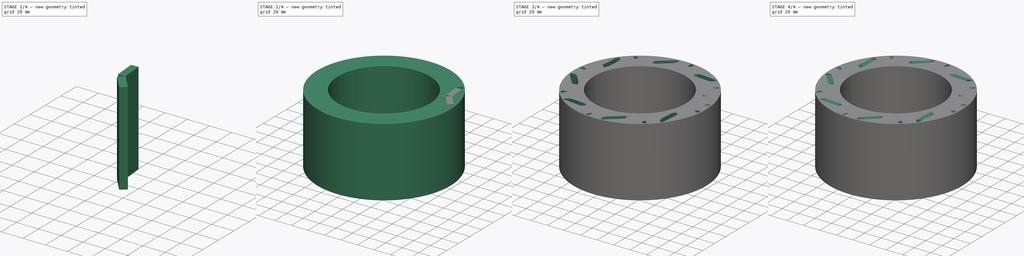
[diagram: build sequence overview — one tinted view per stage of 4, left to right]
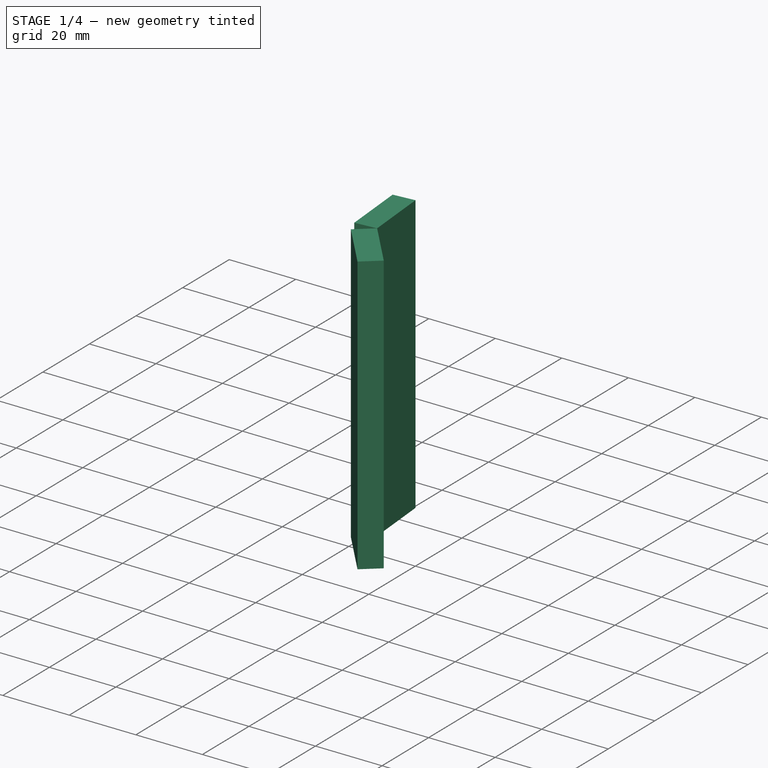
[diagram: stage 1 of 4 — iso view after this stage's code; geometry added in this stage tinted green]
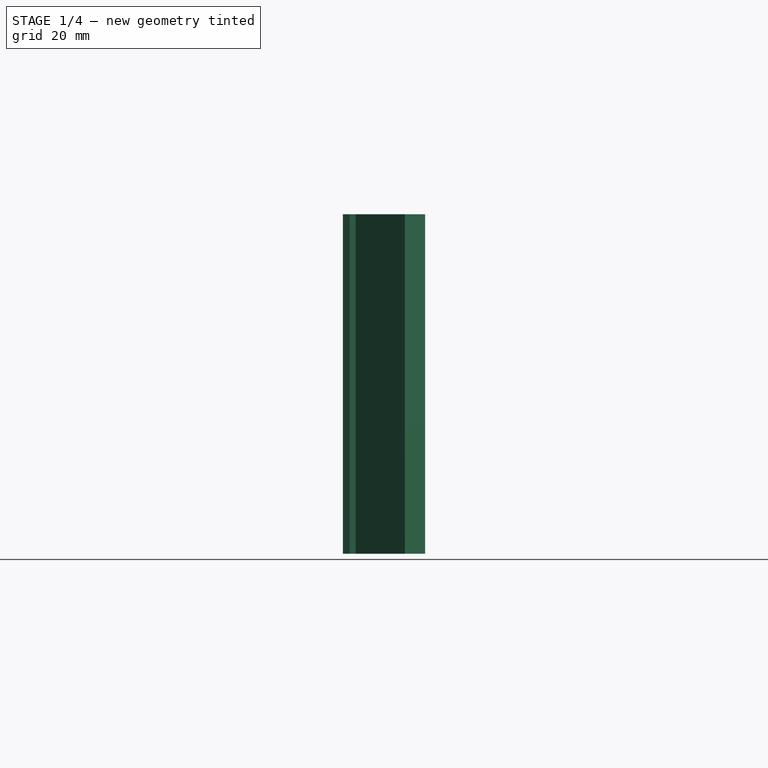
[diagram: stage 1 of 4 — front view after this stage's code; geometry added in this stage tinted green]
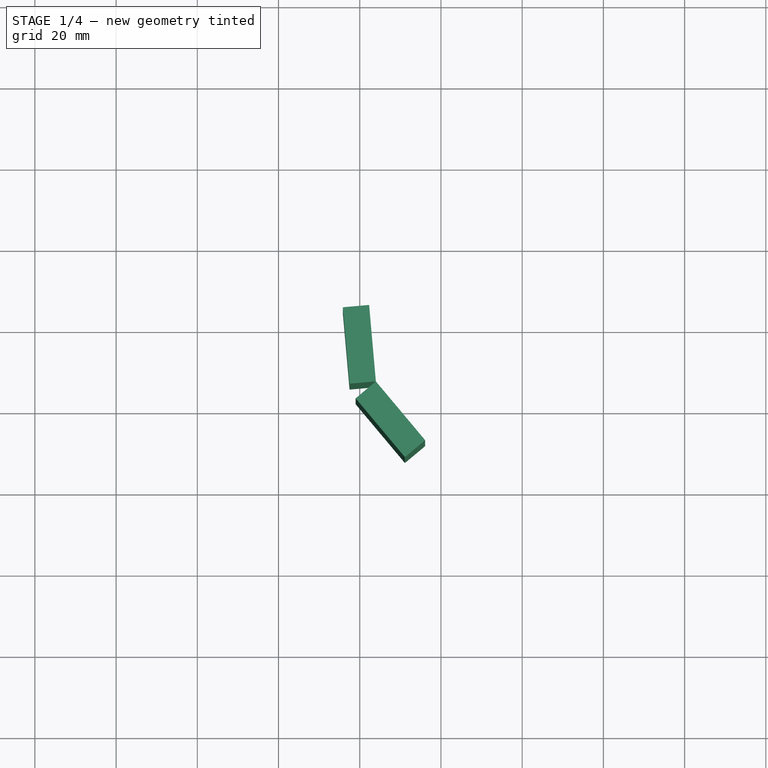
[diagram: stage 1 of 4 — top view after this stage's code; geometry added in this stage tinted green]
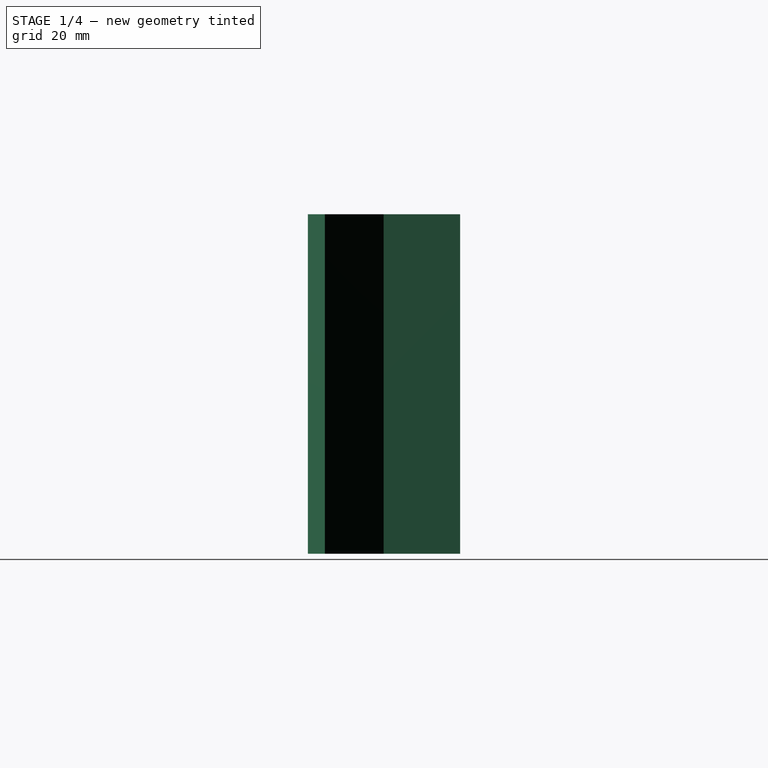
[diagram: stage 1 of 4 — right view after this stage's code; geometry added in this stage tinted green]
FCSTD DOCUMENT  (FreeCAD 0.18R4 (GitTag))
Label: ROTOR
License: All rights reserved
LicenseURL: http://en.wikipedia.org/wiki/All_rights_reserved
objects: Sketcher::SketchObject×8, PartDesign::Pad×5, PartDesign::PolarPattern×3, PartDesign::Body×3, PartDesign::Line×1, PartDesign::Pocket×1
note: 27 computed .brp shape members not serialized (recipe doc carries the construction recipe); baked Part::Feature solids carry a one-line shape summary decoded from their .brp

FEATURE [PartDesign::Pad] Pad001
  Length = 83.6
  Length2 = 100
  Profile = -> Sketch006
  Reversed = true
  Type = 0
FEATURE [PartDesign::Body] Body  label="Rotor"
  Group = -> [Sketch,DatumLine,Sketch001,Sketch002,Pad,Pocket,PolarPattern,Sketch003,Sketch004,Sketch005,Pad002,PolarPattern001,Pad004,PolarPattern002]
  Origin = -> Origin
  Tip = -> PolarPattern002
FEATURE [PartDesign::Pad] Pad003
  Length = 83.6
  Length2 = 100
  Profile = -> Sketch007
  Reversed = true
  Type = 0
FEATURE [PartDesign::Body] Body002  label="Magnet2"
  Group = -> [Sketch007,Pad003]
  Origin = -> Origin002
  Tip = -> Pad003
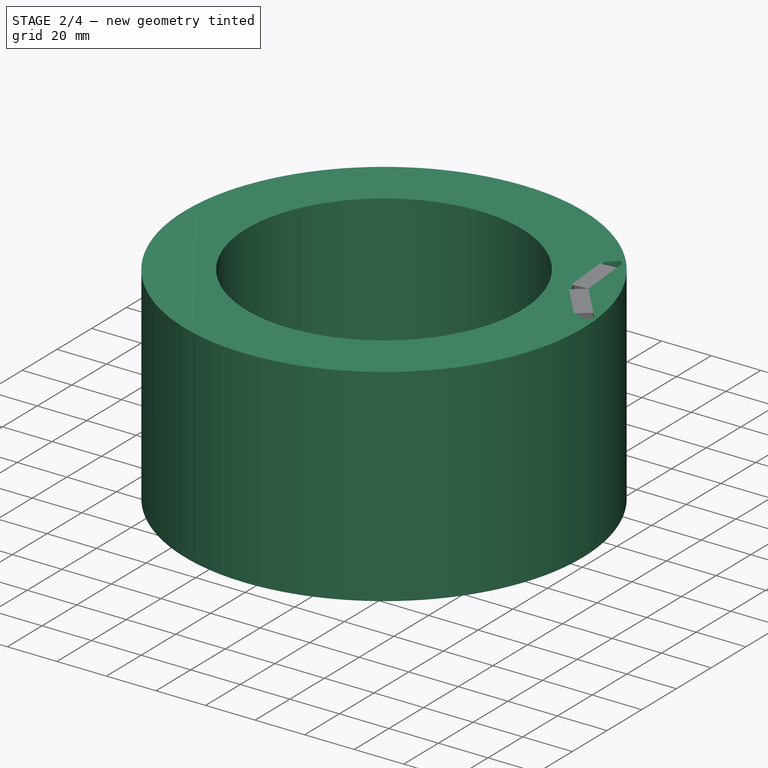
[diagram: stage 2 of 4 — iso view after this stage's code; geometry added in this stage tinted green]
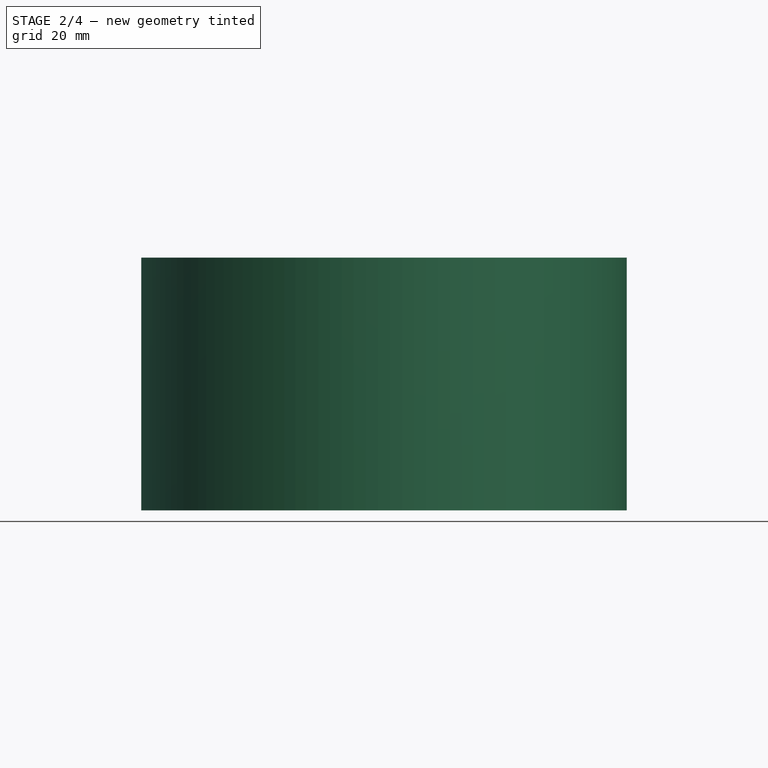
[diagram: stage 2 of 4 — front view after this stage's code; geometry added in this stage tinted green]
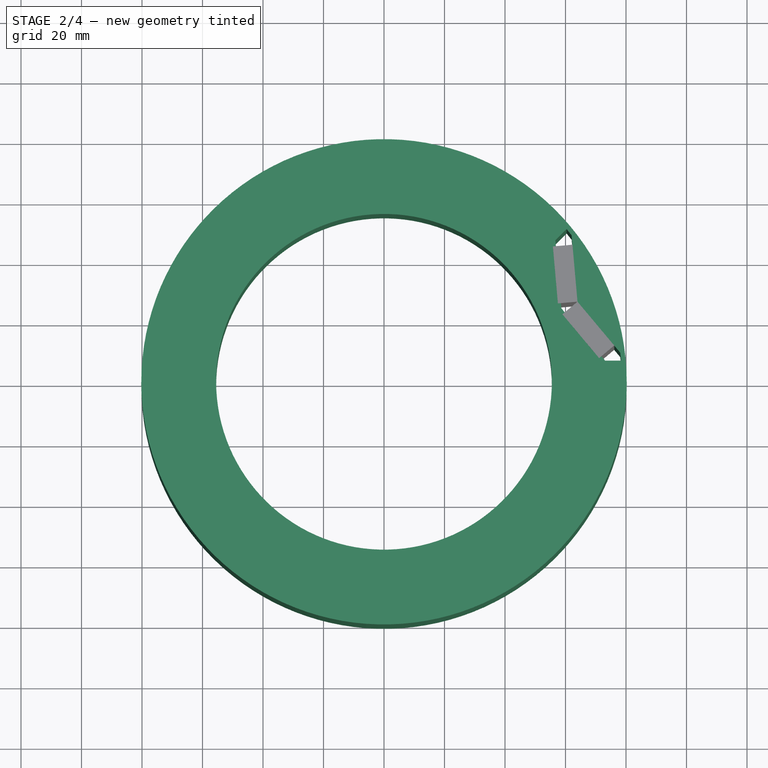
[diagram: stage 2 of 4 — top view after this stage's code; geometry added in this stage tinted green]
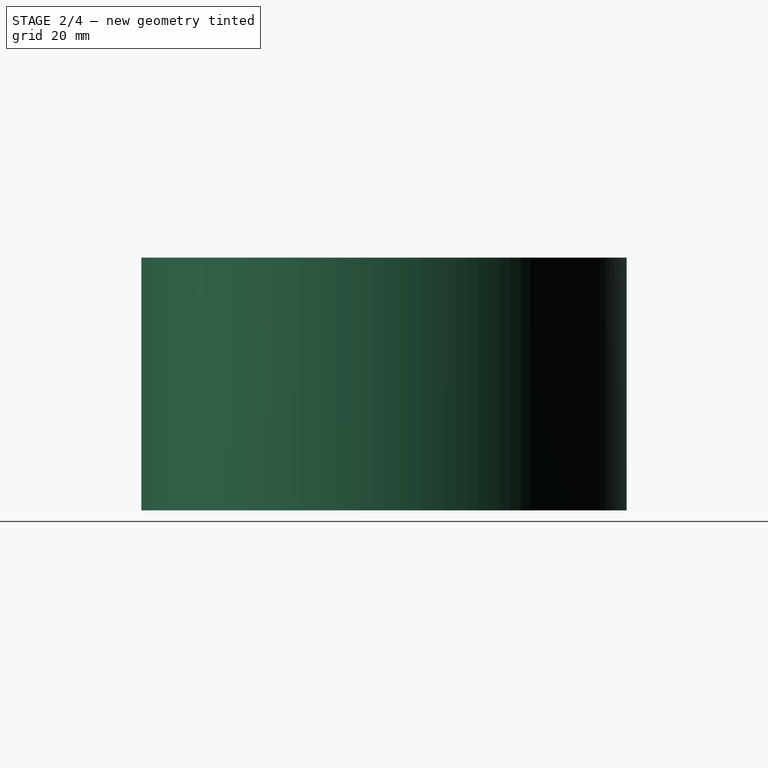
[diagram: stage 2 of 4 — right view after this stage's code; geometry added in this stage tinted green]
FEATURE [Sketcher::SketchObject] Sketch
  MapMode = 5
  Support = -> [XY_Plane]
  sketch-geometry (24):
    g0: LineSegment [constr] StartX=0 StartY=0 StartZ=0 EndX=83.1492 EndY=34.4415 EndZ=0
    g1: GeomPoint X=58.6386 Y=24.2889 Z=0
    g2: GeomPoint X=63.9694 Y=26.497 Z=0
    g3: LineSegment StartX=58.6386 StartY=24.2889 StartZ=0 EndX=58.4867 EndY=26.0122 EndZ=0
    g4: LineSegment StartX=58.4867 StartY=26.0122 StartZ=0 EndX=57.4905 EndY=25.9244 EndZ=0
    g5: LineSegment StartX=57.4905 StartY=25.9244 StartZ=0 EndX=55.8301 EndY=44.7513 EndZ=0
    g6: LineSegment StartX=55.8301 StartY=44.7513 StartZ=0 EndX=56.8263 EndY=44.8392 EndZ=0
    g7: LineSegment StartX=56.8263 StartY=44.8392 StartZ=0 EndX=56.6567 EndY=46.7617 EndZ=0
    g8: LineSegment StartX=56.6567 StartY=46.7617 StartZ=0 EndX=60.3761 EndY=50.4811 EndZ=0
    g9: LineSegment StartX=62.305 StartY=45.3223 StartZ=0 EndX=63.9694 EndY=26.497 EndZ=0
    g10: GeomPoint X=62.0318 Y=48.4203 Z=0
    g11: LineSegment StartX=60.3761 StartY=50.4811 StartZ=0 EndX=62.0318 EndY=48.4203 EndZ=0
    g12: LineSegment StartX=62.0318 StartY=48.4203 StartZ=0 EndX=62.305 EndY=45.3223 EndZ=0
    g13: LineSegment [constr] StartX=56.8263 StartY=44.8392 StartZ=0 EndX=62.305 EndY=45.3223 EndZ=0
    g14: LineSegment StartX=58.6386 StartY=24.2889 StartZ=0 EndX=59.7497 EndY=22.9629 EndZ=0
    g15: LineSegment StartX=59.7497 StartY=22.9629 StartZ=0 EndX=58.9832 EndY=22.3206 EndZ=0
    g16: LineSegment StartX=58.9832 StartY=22.3206 StartZ=0 EndX=71.1218 EndY=7.83391 EndZ=0
    g17: LineSegment StartX=71.1218 StartY=7.83391 StartZ=0 EndX=71.8883 EndY=8.47617 EndZ=0
    g18: LineSegment StartX=71.8883 StartY=8.47617 StartZ=0 EndX=73.1279 EndY=6.99684 EndZ=0
    g19: LineSegment StartX=73.1279 StartY=6.99684 StartZ=0 EndX=78.3879 EndY=6.99684 EndZ=0
    g20: LineSegment StartX=78.3879 StartY=6.99684 StartZ=0 EndX=78.1014 EndY=9.62476 EndZ=0
    g21: LineSegment StartX=78.1014 StartY=9.62476 StartZ=0 EndX=76.104 EndY=12.0086 EndZ=0
    g22: LineSegment StartX=76.104 StartY=12.0086 StartZ=0 EndX=63.9694 EndY=26.497 EndZ=0
    g23: LineSegment [constr] StartX=71.8883 StartY=8.47617 StartZ=0 EndX=76.104 EndY=12.0086 EndZ=0
  constraints (64):
    c: Distance(g0) = 90
    c: Angle(g-1,g0) = 0.392699
    c: PointOnObject(g1,g0)
    c: Coincident(g3,g1)
    c: Coincident(g3,g4)
    c: Coincident(g4,g5)
    c: Coincident(g5,g6)
    c: Coincident(g6,g7)
    c: Coincident(g7,g8)
    c: Coincident(g9,g2)
    c: PointOnObject(g2,g0)
    c: Distance(g3) = 1.73
    c: Angle(g3,g0) = 1.87553
    c: Perpendicular(g3,g4)
    c: Distance(g4) = 1
    c: Perpendicular(g4,g5)
    c: Distance(g5) = 18.9
    c: Perpendicular(g6,g5)
    c: Perpendicular(g7,g6)
    c: Distance(g7) = 1.93
    c: Angle(g7,g8) = 2.26823
    c: Distance(g8) = 5.26
    c: Distance(g6) = 1
    c: Coincident(g11,g8)
    c: Coincident(g11,g10)
    c: Coincident(g12,g10)
    c: Coincident(g12,g9)
    c: Distance(g12) = 3.11
    c: Coincident(g-1,g0)
    c: Distance(g-1,g1) = 63.47
    c: Distance(g2,g-1) = 69.24
    c: Distance(g6,g9) = 5.5
    c: Coincident(g13,g6)
    c: Coincident(g13,g9)
    c: Perpendicular(g13,g12)
    c: Parallel(g6,g13)
    c: Coincident(g14,g15)
    c: Coincident(g15,g16)
    c: Coincident(g16,g17)
    c: Coincident(g17,g18)
    c: Coincident(g18,g19)
    c: Distance(g14) = 1.73
    c: Perpendicular(g14,g15)
    c: Distance(g15) = 1
    c: Perpendicular(g15,g16)
    c: Distance(g16) = 18.9
    c: Perpendicular(g17,g16)
    c: Perpendicular(g18,g17)
    c: Distance(g18) = 1.93
    c: Angle(g18,g19) = -2.26823
    c: Distance(g19) = 5.26
    c: Distance(g17) = 1
    c: Coincident(g20,g19)
    c: Coincident(g21,g22)
    c: Distance(g21) = 3.11
    c: Distance(g17,g22) = 5.5
    c: Coincident(g23,g17)
    c: Coincident(g23,g22)
    c: Perpendicular(g23,g21)
    c: Parallel(g17,g23)
    c: Angle(g14,g3) = 2.53212
    c: Coincident(g20,g21)
    c: Coincident(g14,g1)
    c: Coincident(g22,g2)
FEATURE [PartDesign::Line] DatumLine
  AttacherType = Attacher::AttachEngineLine
  MapMode = 16
  Placement = pos=(0,0,0) rot=(0.57735,0.57735,0.57735;2.0944rad)
  Support = -> [Sketch]
FEATURE [Sketcher::SketchObject] Sketch001
  MapMode = 5
  Support = -> [XY_Plane]
  sketch-geometry (5):
    g0: Circle CenterX=0 CenterY=0 CenterZ=0 NormalX=0 NormalY=0 NormalZ=1 AngleXU=0 Radius=55.5
    g1: Circle CenterX=0 CenterY=0 CenterZ=0 NormalX=0 NormalY=0 NormalZ=1 AngleXU=0 Radius=80.235
    g2: LineSegment [constr] StartX=0 StartY=0 StartZ=0 EndX=83.1492 EndY=34.4415 EndZ=0
    g3: GeomPoint X=58.6386 Y=24.2889 Z=0
    g4: GeomPoint X=63.9694 Y=26.497 Z=0
  constraints (11):
    c: Radius(g0) = 55.5
    c: Coincident(g1,g0)
    c: Diameter(g1) = 160.47
    c: Coincident(g0,g-1)
    c: Coincident(g2,g0)
    c: Distance(g2) = 90
    c: Angle(g-1,g2) = 0.392699
    c: PointOnObject(g3,g2)
    c: Distance(g3,g0) = 63.47
    c: Distance(g4,g0) = 69.24
    c: PointOnObject(g4,g2)
FEATURE [Sketcher::SketchObject] Sketch002
  MapMode = 5
  Support = -> [XY_Plane]
  sketch-geometry (28):
    g0: Circle CenterX=0 CenterY=0 CenterZ=0 NormalX=0 NormalY=0 NormalZ=1 AngleXU=0 Radius=55.5
    g1: Circle CenterX=0 CenterY=0 CenterZ=0 NormalX=0 NormalY=0 NormalZ=1 AngleXU=0 Radius=80.235
    g2: LineSegment [constr] StartX=0 StartY=0 StartZ=0 EndX=83.1492 EndY=34.4415 EndZ=0
    g3: GeomPoint X=58.6386 Y=24.2889 Z=0
    g4: GeomPoint X=63.9694 Y=26.497 Z=0
    g5: LineSegment StartX=58.6386 StartY=24.2889 StartZ=0 EndX=58.4867 EndY=26.0122 EndZ=0
    g6: LineSegment StartX=58.4867 StartY=26.0122 StartZ=0 EndX=57.4905 EndY=25.9244 EndZ=0
    g7: LineSegment StartX=57.4905 StartY=25.9244 StartZ=0 EndX=55.8301 EndY=44.7513 EndZ=0
    g8: LineSegment StartX=55.8301 StartY=44.7513 StartZ=0 EndX=56.8263 EndY=44.8392 EndZ=0
    g9: LineSegment StartX=56.8263 StartY=44.8392 StartZ=0 EndX=56.6567 EndY=46.7617 EndZ=0
    g10: LineSegment StartX=56.6567 StartY=46.7617 StartZ=0 EndX=60.3761 EndY=50.4811 EndZ=0
    g11: LineSegment StartX=62.305 StartY=45.3223 StartZ=0 EndX=63.9694 EndY=26.497 EndZ=0
    g12: LineSegment StartX=63.9694 StartY=26.497 StartZ=0 EndX=58.4867 EndY=26.0122 EndZ=0
    g13: LineSegment StartX=62.305 StartY=45.3223 StartZ=0 EndX=56.8263 EndY=44.8392 EndZ=0
    g14: GeomPoint X=62.0318 Y=48.4203 Z=0
    g15: LineSegment StartX=60.3761 StartY=50.4811 StartZ=0 EndX=62.0318 EndY=48.4203 EndZ=0
    g16: LineSegment StartX=62.0318 StartY=48.4203 StartZ=0 EndX=62.305 EndY=45.3223 EndZ=0
    g17: LineSegment StartX=58.6386 StartY=24.2889 StartZ=0 EndX=59.75 EndY=22.9631 EndZ=0
    g18: LineSegment StartX=59.75 StartY=22.9631 StartZ=0 EndX=58.9836 EndY=22.3207 EndZ=0
    g19: LineSegment StartX=63.9694 StartY=26.497 StartZ=0 EndX=59.75 EndY=22.9631 EndZ=0
    g20: LineSegment StartX=58.9836 StartY=22.3207 StartZ=0 EndX=71.1247 EndY=7.83609 EndZ=0
    g21: LineSegment StartX=76.1062 StartY=12.0116 StartZ=0 EndX=63.9694 EndY=26.497 EndZ=0
    g22: LineSegment StartX=76.1062 StartY=12.0116 StartZ=0 EndX=71.8911 EndY=8.47848 EndZ=0
    g23: LineSegment StartX=71.1247 StartY=7.83609 StartZ=0 EndX=71.8911 EndY=8.47848 EndZ=0
    g24: LineSegment StartX=71.8911 StartY=8.47848 StartZ=0 EndX=73.1309 EndY=6.99936 EndZ=0
    g25: LineSegment StartX=73.1309 StartY=6.99936 StartZ=0 EndX=78.3909 EndY=7.00028 EndZ=0
    g26: LineSegment StartX=78.3909 StartY=7.00028 StartZ=0 EndX=78.104 EndY=9.62816 EndZ=0
    g27: LineSegment StartX=78.104 StartY=9.62816 StartZ=0 EndX=76.1062 EndY=12.0116 EndZ=0
  constraints (72):
    c: Radius(g0) = 55.5
    c: Coincident(g1,g0)
    c: Diameter(g1) = 160.47
    c: Coincident(g0,g-1)
    c: Coincident(g2,g0)
    c: Distance(g2) = 90
    c: Angle(g-1,g2) = 0.392699
    c: PointOnObject(g3,g2)
    c: Distance(g3,g0) = 63.47
    c: Distance(g4,g0) = 69.24
    c: Coincident(g5,g3)
    c: Coincident(g5,g6)
    c: Coincident(g6,g7)
    c: Coincident(g7,g8)
    c: Coincident(g8,g9)
    c: Coincident(g9,g10)
    c: Coincident(g11,g4)
    c: Coincident(g11,g12)
    c: Coincident(g12,g5)
    c: Coincident(g13,g8)
    c: PointOnObject(g4,g2)
    c: Distance(g5) = 1.73
    c: Angle(g5,g2) = 1.87553
    c: Perpendicular(g5,g6)
    c: Distance(g6) = 1
    c: Perpendicular(g6,g7)
    c: Distance(g7) = 18.9
    c: Perpendicular(g8,g7)
    c: Perpendicular(g7,g13)
    c: Perpendicular(g9,g8)
    c: Distance(g9) = 1.93
    c: Angle(g9,g10) = 2.26823
    c: Distance(g10) = 5.26
    c: Distance(g8) = 1
    c: Coincident(g15,g10)
    c: Coincident(g15,g14)
    c: Coincident(g16,g14)
    c: Coincident(g16,g11)
    c: Distance(g16) = 3.11
    c: Coincident(g11,g13)
    c: Distance(g13) = 5.5
    c: Perpendicular(g16,g13)
    c: Coincident(g17,g18)
    c: Coincident(g18,g20)
    c: Coincident(g20,g23)
    c: Coincident(g23,g24)
    c: Coincident(g24,g25)
    c: Coincident(g21,g19)
    c: Coincident(g19,g17)
    c: Coincident(g22,g23)
    c: Distance(g17) = 1.73
    c: Perpendicular(g17,g18)
    c: Distance(g18) = 1
    c: Perpendicular(g18,g20)
    c: Distance(g20) = 18.9
    c: Perpendicular(g23,g20)
    c: Perpendicular(g20,g22)
    c: Perpendicular(g24,g23)
    c: Distance(g24) = 1.93
    c: Angle(g24,g25) = -2.26823
    c: Distance(g25) = 5.26
    c: Distance(g23) = 1
    c: Coincident(g26,g25)
    c: Coincident(g27,g21)
    c: Distance(g27) = 3.11
    c: Coincident(g21,g22)
    c: Distance(g22) = 5.5
    c: Perpendicular(g27,g22)
    c: Coincident(g17,g3)
    c: Coincident(g19,g4)
    c: Coincident(g26,g27)
    c: Angle(g17,g5) = 2.53195
FEATURE [PartDesign::Pad] Pad
  Length = 83.6
  Length2 = 100
  Profile = -> Sketch001
  Reversed = true
  Type = 0
FEATURE [PartDesign::Pocket] Pocket
  BaseFeature = -> Pad
  Length = 5
  Length2 = 100
  Profile = -> Sketch
  Type = 1
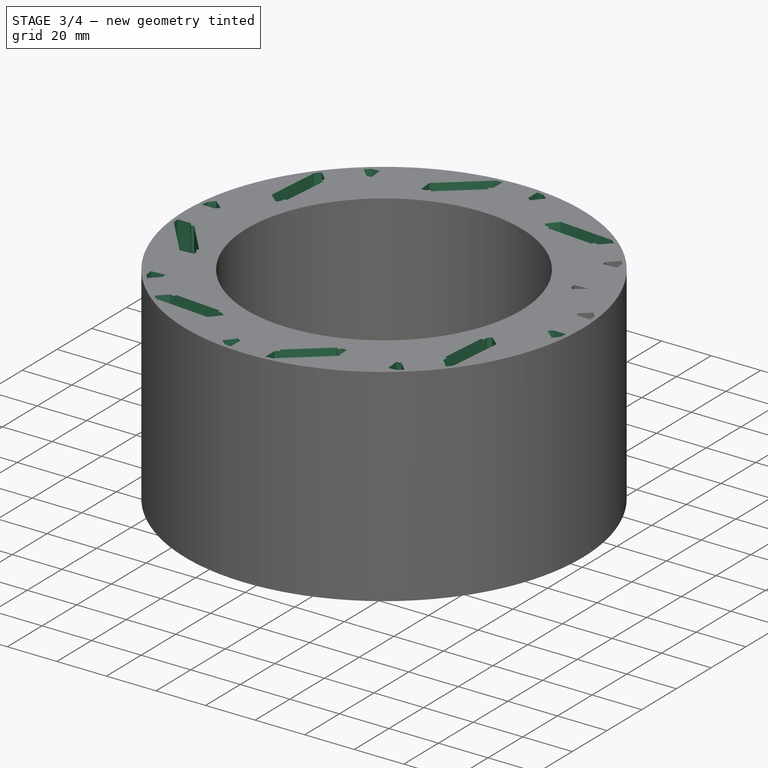
[diagram: stage 3 of 4 — iso view after this stage's code; geometry added in this stage tinted green]
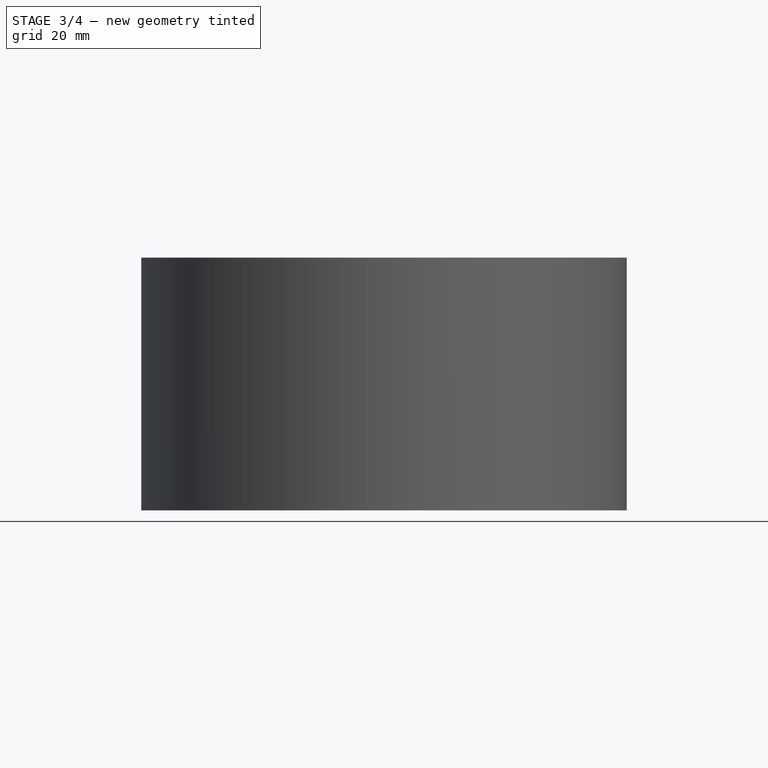
[diagram: stage 3 of 4 — front view after this stage's code; geometry added in this stage tinted green]
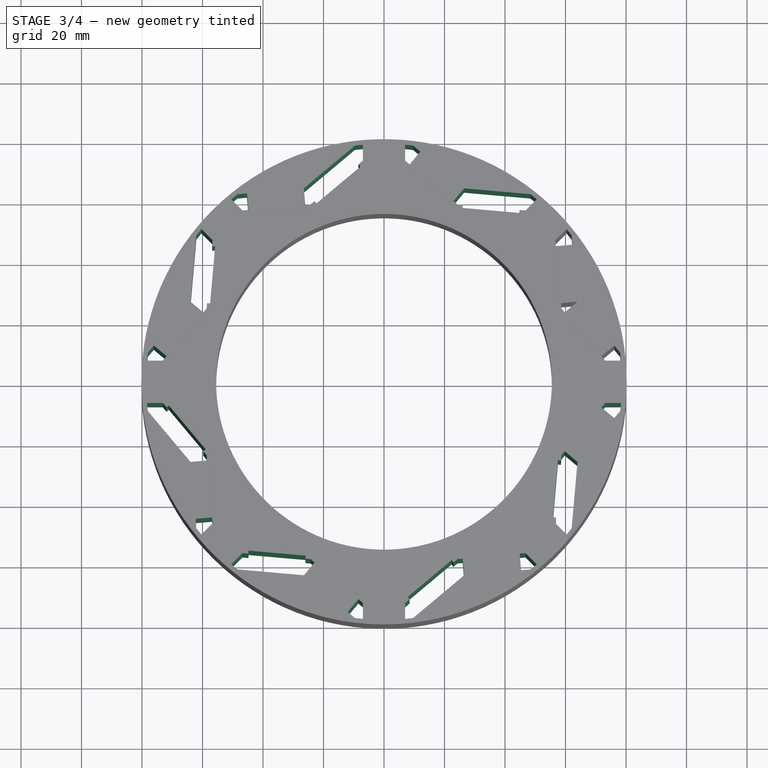
[diagram: stage 3 of 4 — top view after this stage's code; geometry added in this stage tinted green]
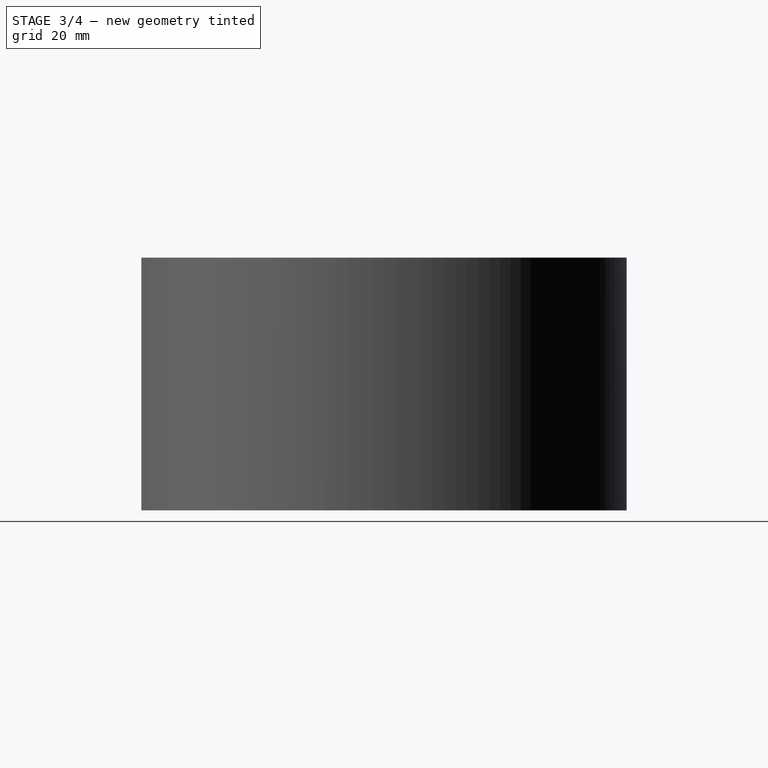
[diagram: stage 3 of 4 — right view after this stage's code; geometry added in this stage tinted green]
FEATURE [PartDesign::PolarPattern] PolarPattern
  Angle = 360
  Axis = -> Sketch [N_Axis]
  BaseFeature = -> Pocket
  Occurrences = 8
  Originals = -> [Pocket]
FEATURE [Sketcher::SketchObject] Sketch003  label="Magnet"
  MapMode = 5
  Support = -> [XY_Plane]
  sketch-geometry (14):
    g0: LineSegment [constr] StartX=0 StartY=0 StartZ=0 EndX=83.1492 EndY=34.4415 EndZ=0
    g1: GeomPoint X=63.9694 Y=26.497 Z=0
    g2: LineSegment StartX=58.4906 StartY=26.0143 StartZ=0 EndX=57.4945 EndY=25.9265 EndZ=0
    g3: LineSegment StartX=57.4945 StartY=25.9265 StartZ=0 EndX=55.8358 EndY=44.7536 EndZ=0
    g4: LineSegment StartX=55.8358 StartY=44.7536 StartZ=0 EndX=56.8319 EndY=44.8414 EndZ=0
    g5: LineSegment StartX=62.3107 StartY=45.3241 StartZ=0 EndX=63.9694 EndY=26.497 EndZ=0
    g6: LineSegment StartX=63.9694 StartY=26.497 StartZ=0 EndX=58.4906 EndY=26.0143 EndZ=0
    g7: LineSegment StartX=62.3107 StartY=45.3241 StartZ=0 EndX=56.8319 EndY=44.8414 EndZ=0
    g8: LineSegment StartX=59.754 StartY=22.9642 StartZ=0 EndX=58.9876 EndY=22.3219 EndZ=0
    g9: LineSegment StartX=63.9694 StartY=26.497 StartZ=0 EndX=59.754 EndY=22.9642 EndZ=0
    g10: LineSegment StartX=58.9876 StartY=22.3219 StartZ=0 EndX=71.1274 EndY=7.83627 EndZ=0
    g11: LineSegment StartX=76.1093 StartY=12.0113 StartZ=0 EndX=63.9694 EndY=26.497 EndZ=0
    g12: LineSegment StartX=76.1093 StartY=12.0113 StartZ=0 EndX=71.8939 EndY=8.47858 EndZ=0
    g13: LineSegment StartX=71.1274 StartY=7.83627 StartZ=0 EndX=71.8939 EndY=8.47858 EndZ=0
  constraints (39):
    c: Distance(g0) = 90
    c: Angle(g-1,g0) = 0.392699
    c: Coincident(g2,g3)
    c: Coincident(g3,g4)
    c: Coincident(g5,g1)
    c: Coincident(g5,g6)
    c: Coincident(g7,g4)
    c: PointOnObject(g1,g0)
    c: Distance(g2) = 1
    c: Perpendicular(g2,g3)
    c: Distance(g3) = 18.9
    c: Perpendicular(g4,g3)
    c: Perpendicular(g3,g7)
    c: Distance(g4) = 1
    c: Coincident(g5,g7)
    c: Distance(g7) = 5.5
    c: Coincident(g8,g10)
    c: Coincident(g10,g13)
    c: Coincident(g11,g9)
    c: Coincident(g12,g13)
    c: Distance(g8) = 1
    c: Perpendicular(g8,g10)
    c: Distance(g10) = 18.9
    c: Perpendicular(g13,g10)
    c: Perpendicular(g10,g12)
    c: Distance(g13) = 1
    c: Coincident(g11,g12)
    c: Distance(g12) = 5.5
    c: Coincident(g9,g1)
    c: Angle(g6,g9) = 0.609644
    c: Equal(g12,g6)
    c: Parallel(g10,g11)
    c: Equal(g3,g5)
    c: Equal(g10,g11)
    c: Coincident(g0,g-1)
    c: Coincident(g2,g6)
    c: Coincident(g9,g8)
    c: Angle(g6,g0) = 0.304822
    c: Distance(g1,g-1) = 69.24
FEATURE [Sketcher::SketchObject] Sketch004  label="Single_magnet"
  MapMode = 5
  Support = -> [XY_Plane]
  sketch-geometry (8):
    g0: LineSegment [constr] StartX=0 StartY=0 StartZ=0 EndX=83.1492 EndY=34.4415 EndZ=0
    g1: GeomPoint X=63.9694 Y=26.497 Z=0
    g2: LineSegment StartX=58.4906 StartY=26.0143 StartZ=0 EndX=57.4945 EndY=25.9265 EndZ=0
    g3: LineSegment StartX=57.4945 StartY=25.9265 StartZ=0 EndX=55.8358 EndY=44.7536 EndZ=0
    g4: LineSegment StartX=55.8358 StartY=44.7536 StartZ=0 EndX=56.8319 EndY=44.8414 EndZ=0
    g5: LineSegment StartX=62.3107 StartY=45.3241 StartZ=0 EndX=63.9694 EndY=26.497 EndZ=0
    g6: LineSegment StartX=63.9694 StartY=26.497 StartZ=0 EndX=58.4906 EndY=26.0143 EndZ=0
    g7: LineSegment StartX=62.3107 StartY=45.3241 StartZ=0 EndX=56.8319 EndY=44.8414 EndZ=0
  constraints (22):
    c: Distance(g0) = 90
    c: Angle(g-1,g0) = 0.392699
    c: Coincident(g2,g3)
    c: Coincident(g3,g4)
    c: Coincident(g5,g1)
    c: Coincident(g5,g6)
    c: Coincident(g7,g4)
    c: PointOnObject(g1,g0)
    c: Distance(g2) = 1
    c: Perpendicular(g2,g3)
    c: Distance(g3) = 18.9
    c: Perpendicular(g4,g3)
    c: Perpendicular(g3,g7)
    c: Distance(g4) = 1
    c: Coincident(g5,g7)
    c: Distance(g7) = 5.5
    c: Equal(g3,g5)
    c: Coincident(g0,g-1)
    c: Coincident(g2,g6)
    c: Angle(g6,g0) = 0.304822
    c: Distance(g1,g-1) = 69.24
    c: Distance(g6) = 5.5
FEATURE [Sketcher::SketchObject] Sketch005  label="SingleMagnet2"
  MapMode = 5
  Support = -> [XY_Plane]
  sketch-geometry (8):
    g0: LineSegment [constr] StartX=0 StartY=0 StartZ=0 EndX=83.1492 EndY=34.4415 EndZ=0
    g1: GeomPoint X=63.9694 Y=26.497 Z=0
    g2: LineSegment StartX=59.7543 StartY=22.9639 StartZ=0 EndX=58.9879 EndY=22.3215 EndZ=0
    g3: LineSegment StartX=63.9694 StartY=26.497 StartZ=0 EndX=59.7543 EndY=22.9639 EndZ=0
    g4: LineSegment StartX=58.9879 StartY=22.3215 StartZ=0 EndX=71.129 EndY=7.83689 EndZ=0
    g5: LineSegment StartX=76.1105 StartY=12.0124 StartZ=0 EndX=63.9694 EndY=26.497 EndZ=0
    g6: LineSegment StartX=76.1105 StartY=12.0124 StartZ=0 EndX=71.8954 EndY=8.47928 EndZ=0
    g7: LineSegment StartX=71.129 StartY=7.83689 StartZ=0 EndX=71.8954 EndY=8.47928 EndZ=0
  constraints (22):
    c: Distance(g0) = 90
    c: Angle(g-1,g0) = 0.392699
    c: PointOnObject(g1,g0)
    c: Coincident(g2,g4)
    c: Coincident(g4,g7)
    c: Coincident(g5,g3)
    c: Coincident(g6,g7)
    c: Distance(g2) = 1
    c: Perpendicular(g2,g4)
    c: Distance(g4) = 18.9
    c: Perpendicular(g7,g4)
    c: Perpendicular(g4,g6)
    c: Distance(g7) = 1
    c: Coincident(g5,g6)
    c: Distance(g6) = 5.5
    c: Coincident(g3,g1)
    c: Parallel(g4,g5)
    c: Equal(g4,g5)
    c: Coincident(g0,g-1)
    c: Coincident(g3,g2)
    c: Distance(g1,g-1) = 69.24
    c: Angle(g0,g3) = 0.304909
FEATURE [Sketcher::SketchObject] Sketch006  label="Single_magnet001"
  MapMode = 5
  Support = -> [XY_Plane]
  sketch-geometry (8):
    g0: LineSegment [constr] StartX=0 StartY=0 StartZ=0 EndX=83.1492 EndY=34.4415 EndZ=0
    g1: GeomPoint X=63.9694 Y=26.497 Z=0
    g2: LineSegment StartX=58.4906 StartY=26.0143 StartZ=0 EndX=57.4945 EndY=25.9265 EndZ=0
    g3: LineSegment StartX=57.4945 StartY=25.9265 StartZ=0 EndX=55.8358 EndY=44.7536 EndZ=0
    g4: LineSegment StartX=55.8358 StartY=44.7536 StartZ=0 EndX=56.8319 EndY=44.8414 EndZ=0
    g5: LineSegment StartX=62.3107 StartY=45.3241 StartZ=0 EndX=63.9694 EndY=26.497 EndZ=0
    g6: LineSegment StartX=63.9694 StartY=26.497 StartZ=0 EndX=58.4906 EndY=26.0143 EndZ=0
    g7: LineSegment StartX=62.3107 StartY=45.3241 StartZ=0 EndX=56.8319 EndY=44.8414 EndZ=0
  constraints (22):
    c: Distance(g0) = 90
    c: Angle(g-1,g0) = 0.392699
    c: Coincident(g2,g3)
    c: Coincident(g3,g4)
    c: Coincident(g5,g1)
    c: Coincident(g5,g6)
    c: Coincident(g7,g4)
    c: PointOnObject(g1,g0)
    c: Distance(g2) = 1
    c: Perpendicular(g2,g3)
    c: Distance(g3) = 18.9
    c: Perpendicular(g4,g3)
    c: Perpendicular(g3,g7)
    c: Distance(g4) = 1
    c: Coincident(g5,g7)
    c: Distance(g7) = 5.5
    c: Equal(g3,g5)
    c: Coincident(g0,g-1)
    c: Coincident(g2,g6)
    c: Angle(g6,g0) = 0.304822
    c: Distance(g1,g-1) = 69.24
    c: Distance(g6) = 5.5
FEATURE [PartDesign::Pad] Pad002
  BaseFeature = -> PolarPattern
  Length = 83.6
  Length2 = 100
  Profile = -> Sketch006
  Reversed = true
  Type = 0
FEATURE [PartDesign::PolarPattern] PolarPattern001
  Angle = 360
  Axis = -> Sketch006 [N_Axis]
  BaseFeature = -> Pad002
  Occurrences = 8
  Originals = -> [Pad002]
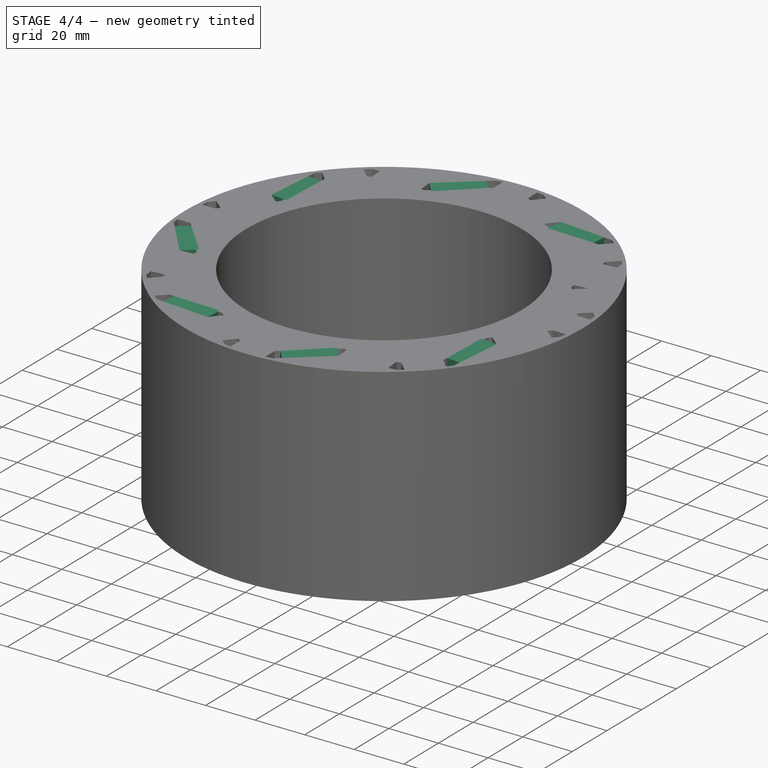
[diagram: stage 4 of 4 — iso view after this stage's code; geometry added in this stage tinted green]
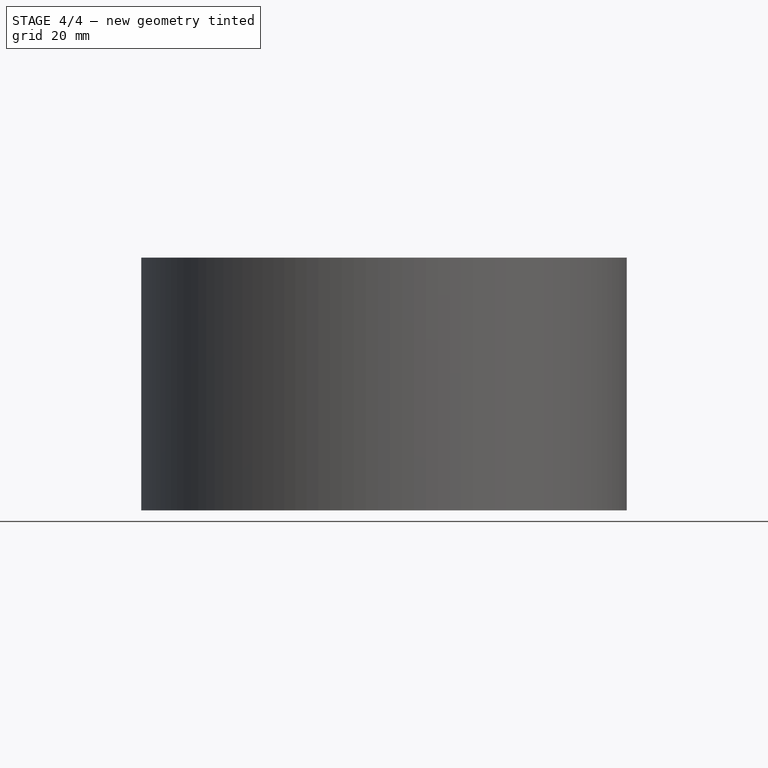
[diagram: stage 4 of 4 — front view after this stage's code; geometry added in this stage tinted green]
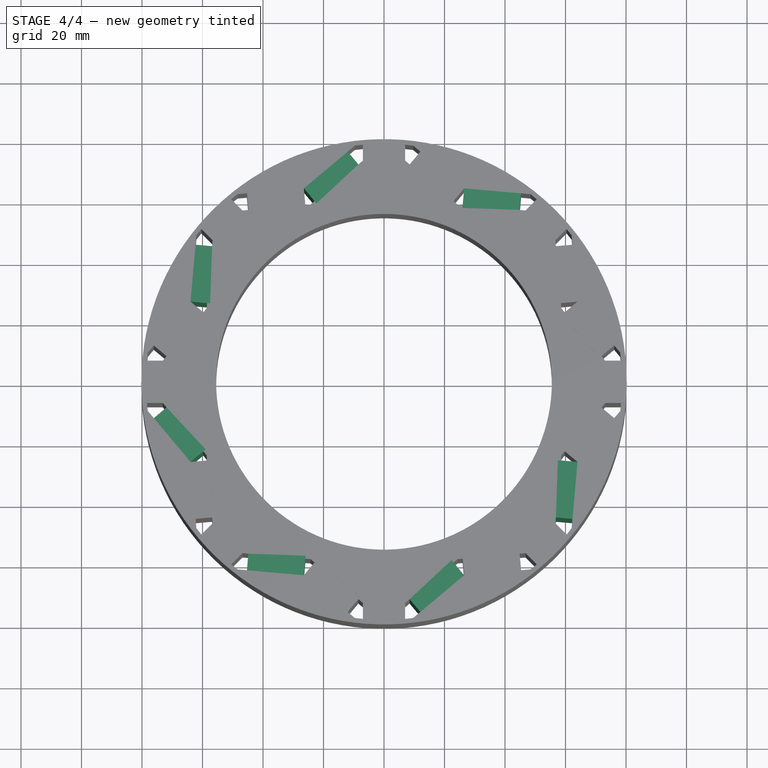
[diagram: stage 4 of 4 — top view after this stage's code; geometry added in this stage tinted green]
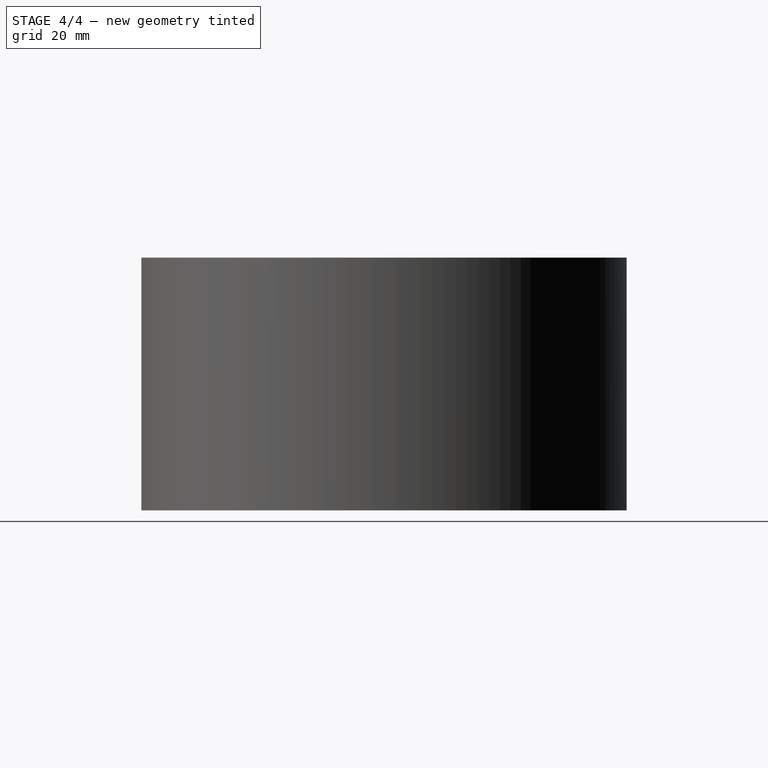
[diagram: stage 4 of 4 — right view after this stage's code; geometry added in this stage tinted green]
FEATURE [PartDesign::Body] Body001  label="Magnet1"
  Group = -> [Sketch006,Pad001]
  Origin = -> Origin001
  Tip = -> Pad001
FEATURE [Sketcher::SketchObject] Sketch007  label="SingleMagnet003"
  MapMode = 5
  Support = -> [XY_Plane]
  sketch-geometry (8):
    g0: LineSegment [constr] StartX=0 StartY=0 StartZ=0 EndX=83.1492 EndY=34.4415 EndZ=0
    g1: GeomPoint X=63.9694 Y=26.497 Z=0
    g2: LineSegment StartX=59.7543 StartY=22.9639 StartZ=0 EndX=58.9879 EndY=22.3215 EndZ=0
    g3: LineSegment StartX=63.9694 StartY=26.497 StartZ=0 EndX=59.7543 EndY=22.9639 EndZ=0
    g4: LineSegment StartX=58.9879 StartY=22.3215 StartZ=0 EndX=71.129 EndY=7.83689 EndZ=0
    g5: LineSegment StartX=76.1105 StartY=12.0124 StartZ=0 EndX=63.9694 EndY=26.497 EndZ=0
    g6: LineSegment StartX=76.1105 StartY=12.0124 StartZ=0 EndX=71.8954 EndY=8.47928 EndZ=0
    g7: LineSegment StartX=71.129 StartY=7.83689 StartZ=0 EndX=71.8954 EndY=8.47928 EndZ=0
  constraints (22):
    c: Distance(g0) = 90
    c: Angle(g-1,g0) = 0.392699
    c: PointOnObject(g1,g0)
    c: Coincident(g2,g4)
    c: Coincident(g4,g7)
    c: Coincident(g5,g3)
    c: Coincident(g6,g7)
    c: Distance(g2) = 1
    c: Perpendicular(g2,g4)
    c: Distance(g4) = 18.9
    c: Perpendicular(g7,g4)
    c: Perpendicular(g4,g6)
    c: Distance(g7) = 1
    c: Coincident(g5,g6)
    c: Distance(g6) = 5.5
    c: Coincident(g3,g1)
    c: Parallel(g4,g5)
    c: Equal(g4,g5)
    c: Coincident(g0,g-1)
    c: Coincident(g3,g2)
    c: Distance(g1,g-1) = 69.24
    c: Angle(g0,g3) = 0.304909
FEATURE [PartDesign::Pad] Pad004
  BaseFeature = -> PolarPattern001
  Length = 83.6
  Length2 = 100
  Profile = -> Sketch007
  Reversed = true
  Type = 0
FEATURE [PartDesign::PolarPattern] PolarPattern002
  Angle = 360
  Axis = -> Sketch007 [N_Axis]
  BaseFeature = -> Pad004
  Occurrences = 8
  Originals = -> [Pad004]
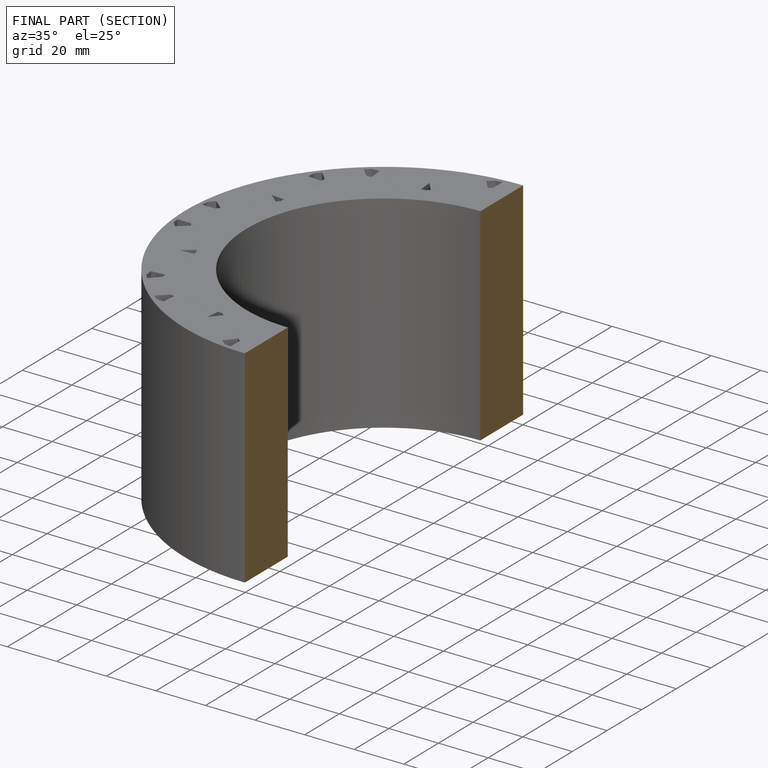
[diagram: finished part — half-section view (interior)]
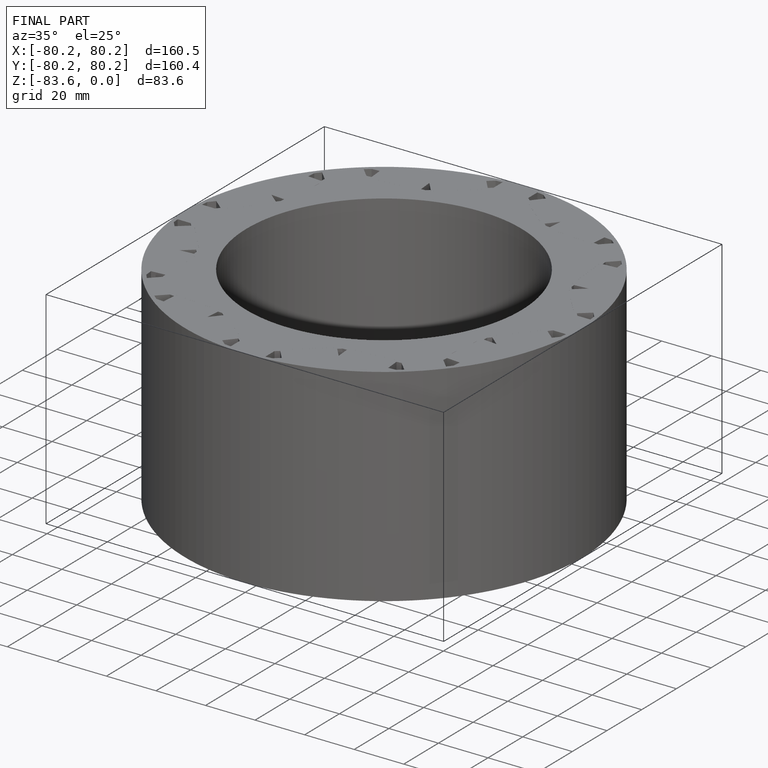
[diagram: finished part — iso view with bounding-box wireframe]
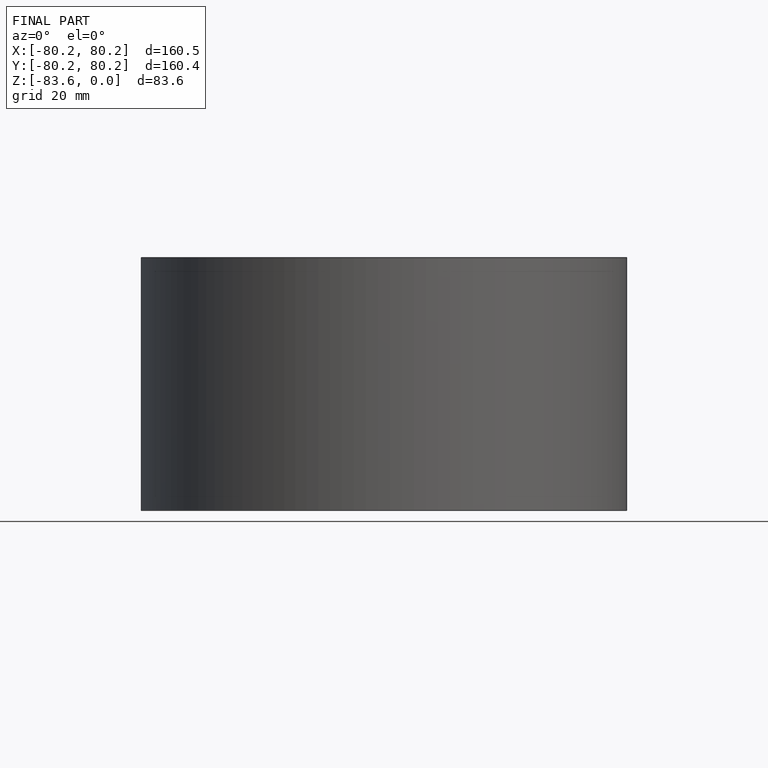
[diagram: finished part — front view with bounding-box wireframe]
